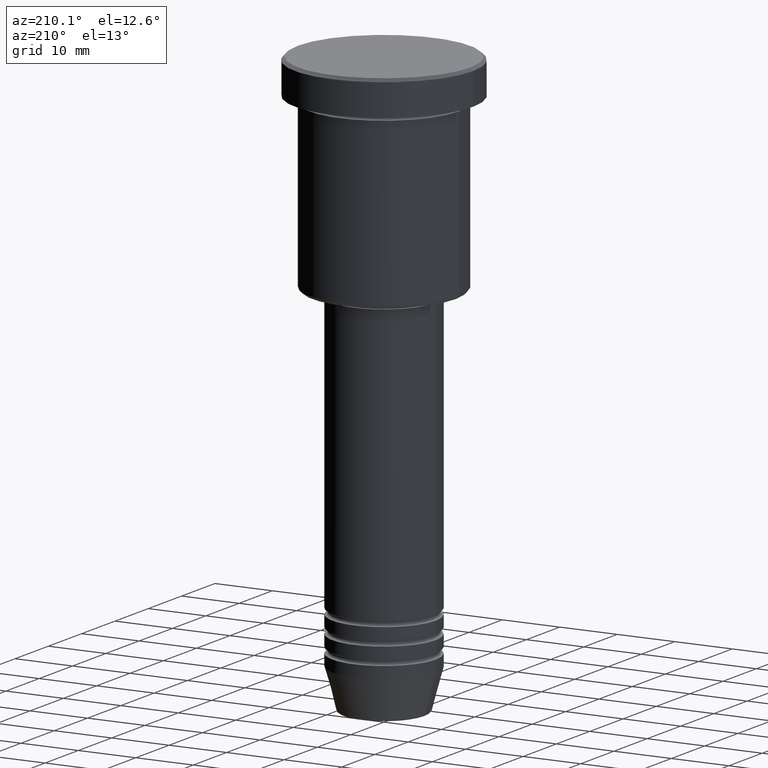
[diagram: clean part render]
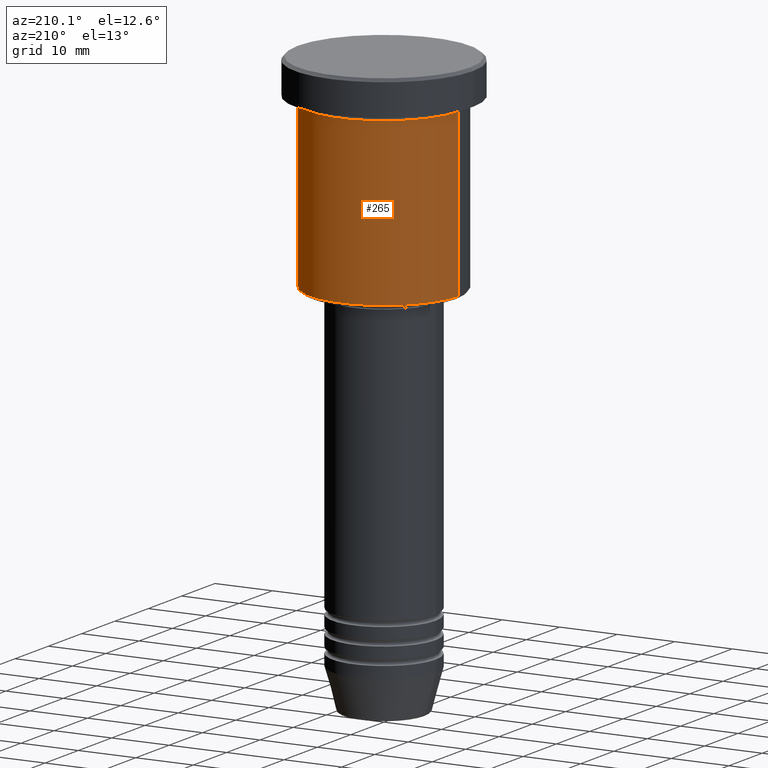
[diagram: same view with one face highlighted and labeled with its STEP entity id]
A machine part, auxiliary view. The second image highlights one B-rep face of the part: STEP entity #265.
In plain terms, the highlighted cylindrical surface (partial cylindrical patch) has radius 13 mm, axis along (-0, -0, 1).
Its self-contained STEP definition (entity closure, byte-faithful):
#52 = EDGE_CURVE ( 'NONE', #1145, #706, #198, .T. ) ;
#108 = VECTOR ( 'NONE', #394, 1000.000000000000000 ) ;
#118 = DIRECTION ( 'NONE',  ( 1.000000000000000000, 0.000000000000000000, 0.000000000000000000 ) ) ;
#128 = CARTESIAN_POINT ( 'NONE',  ( 13.00000000000000000, 0.000000000000000000, 0.000000000000000000 ) ) ;
#198 = CIRCLE ( 'NONE', #322, 13.00000000000000000 ) ;
#209 = CARTESIAN_POINT ( 'NONE',  ( 13.00000000000000000, 0.000000000000000000, -35.50000000000000711 ) ) ;
#242 = VERTEX_POINT ( 'NONE', #853 ) ;
#265 = ADVANCED_FACE ( 'NONE', ( #596 ), #592, .T. ) ;
#321 = DIRECTION ( 'NONE',  ( -0.000000000000000000, -0.000000000000000000, 1.000000000000000000 ) ) ;
#322 = AXIS2_PLACEMENT_3D ( 'NONE', #1005, #370, #824 ) ;
#328 = EDGE_CURVE ( 'NONE', #1145, #242, #860, .T. ) ;
#370 = DIRECTION ( 'NONE',  ( -0.000000000000000000, -0.000000000000000000, 1.000000000000000000 ) ) ;
#394 = DIRECTION ( 'NONE',  ( -0.000000000000000000, -0.000000000000000000, 1.000000000000000000 ) ) ;
#414 = ORIENTED_EDGE ( 'NONE', *, *, #627, .F. ) ;
#447 = CARTESIAN_POINT ( 'NONE',  ( -13.00000000000000000, 1.592040838891559095E-15, 0.000000000000000000 ) ) ;
#454 = DIRECTION ( 'NONE',  ( 1.000000000000000000, 0.000000000000000000, 0.000000000000000000 ) ) ;
#473 = AXIS2_PLACEMENT_3D ( 'NONE', #549, #928, #454 ) ;
#476 = CARTESIAN_POINT ( 'NONE',  ( -13.00000000000000000, 1.592040838891559095E-15, -35.50000000000000711 ) ) ;
#549 = CARTESIAN_POINT ( 'NONE',  ( 0.000000000000000000, 0.000000000000000000, -6.999999999999995559 ) ) ;
#575 = CARTESIAN_POINT ( 'NONE',  ( 0.000000000000000000, 0.000000000000000000, 0.000000000000000000 ) ) ;
#592 = CYLINDRICAL_SURFACE ( 'NONE', #694, 13.00000000000000000 ) ;
#596 = FACE_OUTER_BOUND ( 'NONE', #941, .T. ) ;
#599 = VECTOR ( 'NONE', #726, 1000.000000000000000 ) ;
#627 = EDGE_CURVE ( 'NONE', #242, #923, #1020, .T. ) ;
#694 = AXIS2_PLACEMENT_3D ( 'NONE', #575, #321, #118 ) ;
#702 = CARTESIAN_POINT ( 'NONE',  ( -13.00000000000000000, 1.592040838891559095E-15, -6.999999999999995559 ) ) ;
#706 = VERTEX_POINT ( 'NONE', #476 ) ;
#726 = DIRECTION ( 'NONE',  ( -0.000000000000000000, -0.000000000000000000, 1.000000000000000000 ) ) ;
#755 = ORIENTED_EDGE ( 'NONE', *, *, #328, .F. ) ;
#824 = DIRECTION ( 'NONE',  ( -1.000000000000000000, 0.000000000000000000, 0.000000000000000000 ) ) ;
#853 = CARTESIAN_POINT ( 'NONE',  ( 13.00000000000000000, 0.000000000000000000, -6.999999999999995559 ) ) ;
#860 = LINE ( 'NONE', #128, #108 ) ;
#881 = ORIENTED_EDGE ( 'NONE', *, *, #52, .T. ) ;
#923 = VERTEX_POINT ( 'NONE', #702 ) ;
#928 = DIRECTION ( 'NONE',  ( -0.000000000000000000, -0.000000000000000000, 1.000000000000000000 ) ) ;
#941 = EDGE_LOOP ( 'NONE', ( #881, #1119, #414, #755 ) ) ;
#974 = EDGE_CURVE ( 'NONE', #706, #923, #1176, .T. ) ;
#1005 = CARTESIAN_POINT ( 'NONE',  ( 0.000000000000000000, 0.000000000000000000, -35.50000000000000711 ) ) ;
#1020 = CIRCLE ( 'NONE', #473, 13.00000000000000000 ) ;
#1119 = ORIENTED_EDGE ( 'NONE', *, *, #974, .T. ) ;
#1145 = VERTEX_POINT ( 'NONE', #209 ) ;
#1176 = LINE ( 'NONE', #447, #599 ) ;